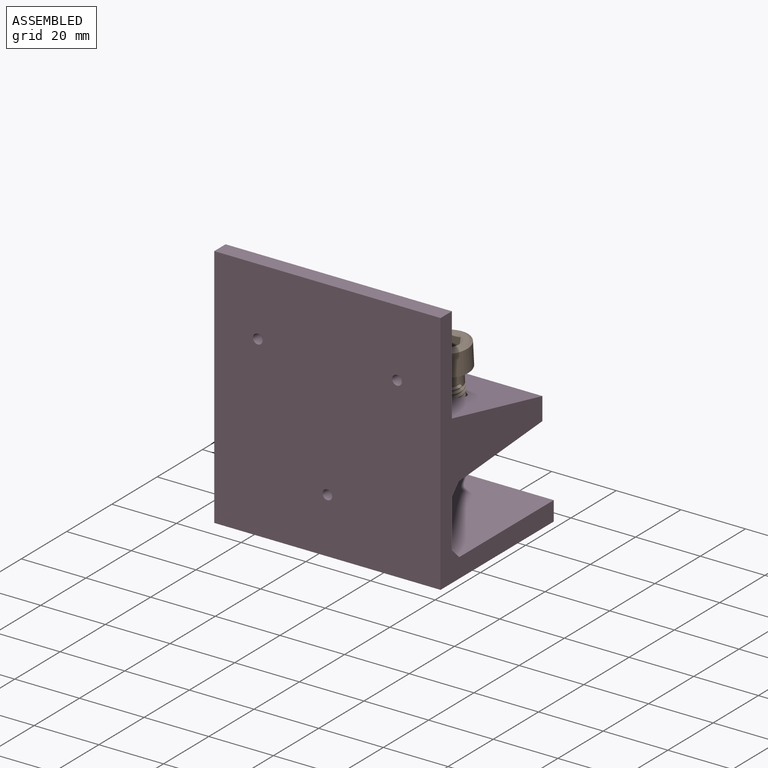
[diagram: assembled view]
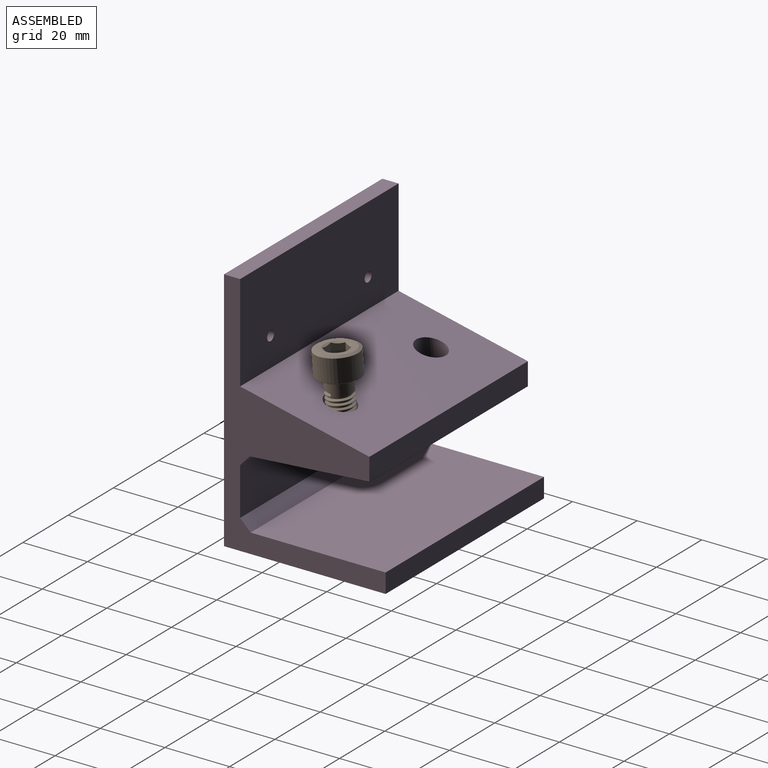
[diagram: assembled view, second angle]
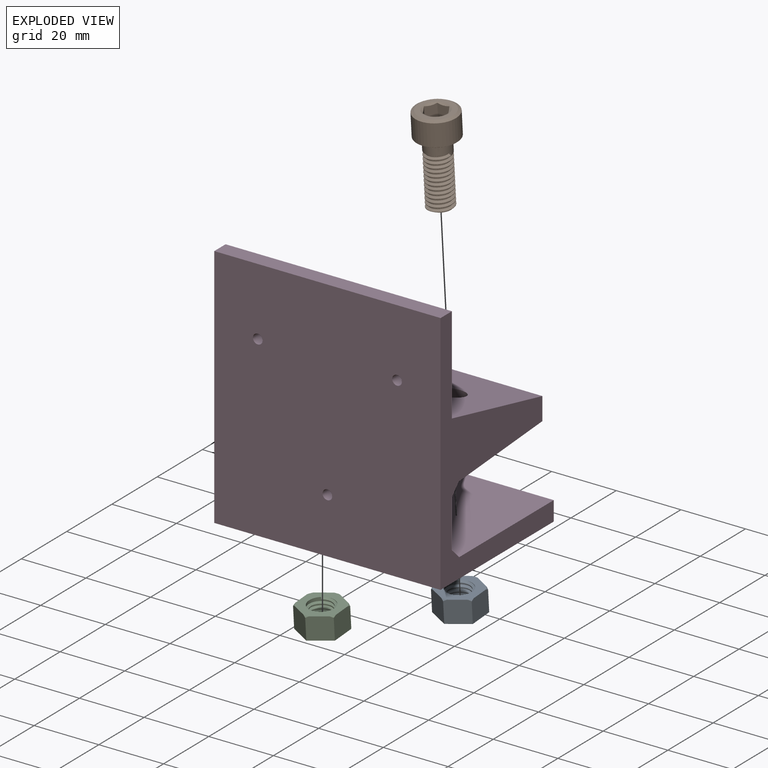
[diagram: exploded view]
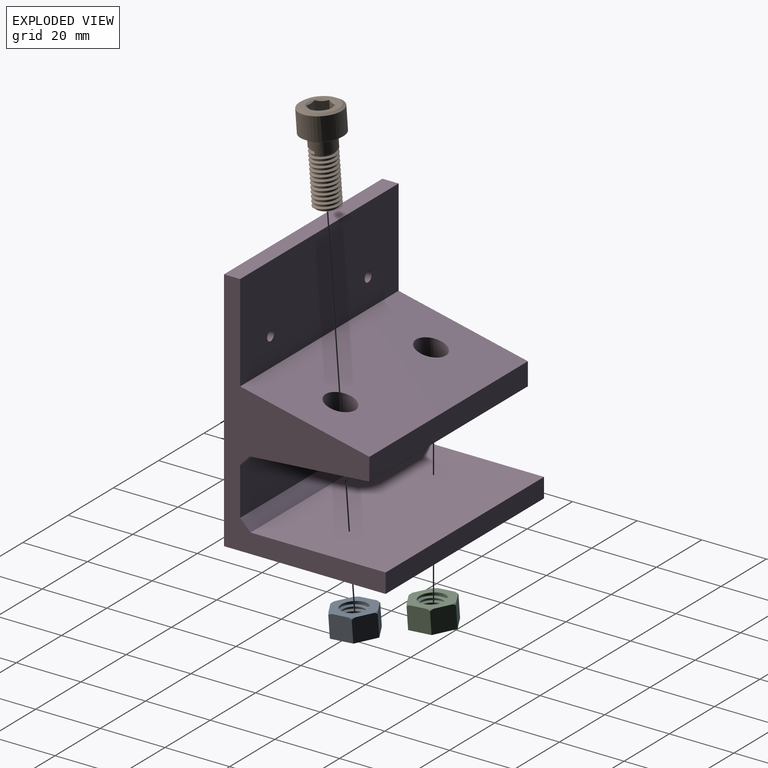
[diagram: exploded view, second angle]
ASSEMBLY  parts=4 mates=3
PART A: 21 faces, bbox 14.9x8x13.8 mm
  f0: cylinder r=4mm len=8mm, axis (0,1,0), area 34.8mm2, adj f7,f8,f10,f16,f19,f20
  f1: plane 7.05x6.35mm, normal (-0.87,0,-0.5), area 50.5mm2, adj f2,f6,f11,f16,f17,f20
  f2: plane 7.32x7.05mm, normal (0,0,-1), area 50.5mm2, adj f1,f3,f15,f16,f17,f20
  f3: plane 7.05x6.35mm, normal (0.87,0,-0.5), area 50.5mm2, adj f2,f4,f14,f15,f16,f20
  f4: plane 7.05x6.35mm, normal (0.87,0,0.5), area 50.5mm2, adj f3,f5,f13,f14,f16,f20
  f5: plane 7.32x7.05mm, normal (0,0,1), area 50.5mm2, adj f4,f6,f12,f13,f16,f20
  f6: plane 7.05x6.35mm, normal (-0.87,0,0.5), area 50.5mm2, adj f1,f5,f11,f12,f16,f20
  f7: plane 0.16x0.09mm, normal (0,0,-1), area 0mm2, adj f0,f10,f20
  f8: bspline ~8.01x8.01mm, area 89.3mm2, adj f0,f9,f19,f20
  f9: cylinder r=3.32mm len=6.7mm, axis (0,-1,0), area 43.5mm2, adj f8,f10,f19,f20
  f10: bspline ~7.99x7.98mm, area 99mm2, adj f0,f7,f9,f18,f19,f20
  f11: cone r=6.83mm half-angle=45deg, axis (0,1,0), area 0.5mm2, adj f1,f6,f16
  f12: cone r=6.83mm half-angle=45deg, axis (0,1,0), area 0.5mm2, adj f5,f6,f16
  f13: cone r=6.83mm half-angle=45deg, axis (0,1,0), area 0.5mm2, adj f4,f5,f16
  f14: cone r=6.83mm half-angle=45deg, axis (0,1,0), area 0.5mm2, adj f3,f4,f16
  f15: cone r=6.83mm half-angle=45deg, axis (0,1,0), area 0.5mm2, adj f2,f3,f16
  f16: plane 13.67x12.6mm, normal (0,-1,0), area 85mm2, adj f0,f1,f2,f3,f4,f5,f6,f11
  f17: cone r=6.83mm half-angle=45deg, axis (0,1,0), area 0.5mm2, adj f1,f2,f16
  f18: cylinder r=4mm len=1.71mm, axis (0,-1,0), area 0.1mm2, adj f10,f16,f19
  f19: plane 1.09x0.55mm, normal (0.59,0,-0.81), area 0.5mm2, adj f0,f8,f9,f10,f18
  f20: plane 14.9x12.95mm, normal (0,1,0), area 96mm2, adj f0,f1,f2,f3,f4,f5,f6,f7
PART B: 38 faces, bbox 13.3x28.9x13.3 mm
  f0: cylinder r=4mm len=8mm, axis (0,-1,0), area 93.8mm2, adj f13,f16,f21,f36
  f1: cylinder r=4mm len=8mm, axis (0,-1,0), area 2.3mm2, adj f2,f14,f16,f37
  f2: cylinder r=4mm len=8mm, axis (0,-1,0), area 3.9mm2, adj f1,f3,f14,f16
  f3: cylinder r=4mm len=8mm, axis (0,-1,0), area 3.9mm2, adj f2,f4,f14,f16
  f4: cylinder r=4mm len=8mm, axis (0,-1,0), area 3.9mm2, adj f3,f5,f14,f16
  f5: cylinder r=4mm len=8mm, axis (0,-1,0), area 3.9mm2, adj f4,f6,f14,f16
  f6: cylinder r=4mm len=8mm, axis (0,-1,0), area 3.9mm2, adj f5,f7,f14,f16
  f7: cylinder r=4mm len=8mm, axis (0,-1,0), area 3.9mm2, adj f6,f8,f14,f16
  f8: cylinder r=4mm len=8mm, axis (0,-1,0), area 3.9mm2, adj f7,f9,f14,f16
  f9: cylinder r=4mm len=8mm, axis (0,-1,0), area 3.9mm2, adj f8,f10,f14,f16
  f10: cylinder r=4mm len=8mm, axis (0,-1,0), area 3.9mm2, adj f9,f11,f14,f16
  f11: cylinder r=4mm len=8mm, axis (0,-1,0), area 3.9mm2, adj f10,f12,f14,f16
  f12: cylinder r=4mm len=8mm, axis (0,-1,0), area 3.9mm2, adj f11,f13,f14,f16
  f13: cylinder r=4mm len=8mm, axis (0,-1,0), area 3.9mm2, adj f0,f12,f14,f16
  f14: bspline ~16.64x8mm, area 230.1mm2, adj f1,f2,f3,f4,f5,f6,f7,f8
  f15: cylinder r=3.32mm len=16.5mm, axis (0,-1,0), area 76.6mm2, adj f14,f16,f36,f37
  f16: bspline ~17.42x8mm, area 240.9mm2, adj f0,f1,f2,f3,f4,f5,f6,f7
  f17: plane 11.16x11.16mm, normal (0,-1,0), area 47.6mm2, adj f18,f22
  f18: cone r=6.5mm half-angle=60deg, axis (0,1,0), area 40.2mm2, adj f17,f19
  f19: cylinder r=6.5mm len=13mm, axis (0,-1,0), area 283.4mm2, adj f18,f20
  f20: cone r=5.58mm half-angle=60deg, axis (0,-1,0), area 40.2mm2, adj f19,f21
  f21: plane 11.16x11.16mm, normal (0,1,0), area 47.6mm2, adj f0,f20
  f22: cone r=0mm half-angle=60deg, axis (0,-1,0), area 15.4mm2, adj f17,f23,f24,f25,f26,f27,f28
  f23: plane 6.17x4.06mm, normal (0,0,1), area 21.3mm2, adj f22,f24,f28,f29,f34
  f24: plane 5.86x3.25mm, normal (-0.87,0,0.5), area 21.3mm2, adj f22,f23,f25,f33,f34
  f25: plane 5.86x3.25mm, normal (-0.87,0,-0.5), area 21.3mm2, adj f22,f24,f26,f32,f33
  f26: plane 5.86x3.76mm, normal (0,0,-1), area 21.3mm2, adj f22,f25,f27,f31,f32
  f27: plane 5.86x3.25mm, normal (0.87,0,-0.5), area 21.3mm2, adj f22,f26,f28,f30,f31
  f28: plane 5.86x3.25mm, normal (0.87,0,0.5), area 21.3mm2, adj f22,f23,f27,f29,f30
  f29: plane 2.81x1.63mm, normal (0,-1,0), area 0.6mm2, adj f23,f28,f35
  f30: plane 3.25x0.94mm, normal (0,-1,0), area 0.6mm2, adj f27,f28,f35
  f31: plane 2.81x1.63mm, normal (0,-1,0), area 0.6mm2, adj f26,f27,f35
  f32: plane 2.81x1.63mm, normal (0,-1,0), area 0.6mm2, adj f25,f26,f35
  f33: plane 3.25x0.94mm, normal (0,-1,0), area 0.6mm2, adj f24,f25,f35
  f34: plane 2.81x1.63mm, normal (0,-1,0), area 0.6mm2, adj f23,f24,f35
  f35: cone r=0mm half-angle=60deg, axis (0,-1,0), area 38.3mm2, adj f29,f30,f31,f32,f33,f34
  f36: plane 1.09x0.68mm, normal (0,0,-1), area 0.5mm2, adj f0,f14,f15,f16
  f37: plane 7.64x7.56mm, normal (0,1,0), area 41.4mm2, adj f1,f14,f15,f16
PART C: same geometry as A
PART D: 33 faces, bbox 70x50x76 mm
  f0: plane 76x70mm, normal (0,-1,0), area 5298.8mm2, adj f1,f9,f10,f11,f28,f29,f30
  f1: plane 70x50mm, normal (0,0,-1), area 3500mm2, adj f0,f2,f10,f11
  f2: plane 70x6mm, normal (0,1,0), area 420mm2, adj f1,f3,f10,f11
  f3: plane 70x41.77mm, normal (0,0,1), area 2923.7mm2, adj f2,f10,f11,f12
  f4: plane 70x14.77mm, normal (0,1,0), area 1026.6mm2, adj f10,f11,f12,f13,f30
  f5: plane 70x37.01mm, normal (0,0.07,-1), area 2277.5mm2, adj f6,f10,f11,f13,f14,f15,f16,f17
  f6: plane 70x7mm, normal (0,1,0), area 490mm2, adj f5,f7,f10,f11
  f7: plane 70x40mm, normal (0,0.22,0.98), area 2737mm2, adj f6,f8,f10,f11,f31,f32
  f8: plane 70x30mm, normal (0,1,0), area 2085.9mm2, adj f7,f9,f10,f11,f28,f29
  f9: plane 70x5mm, normal (0,0,1), area 350mm2, adj f0,f8,f10,f11
  f10: plane 76x50mm, normal (1,0,0), area 1179.7mm2, adj f0,f1,f2,f3,f4,f5,f6,f7
  f11: plane 76x50mm, normal (-1,0,0), area 1179.7mm2, adj f0,f1,f2,f3,f4,f5,f6,f7
  f12: plane 70x3.23mm, normal (0,0.71,0.71), area 320.1mm2, adj f3,f4,f10,f11
  f13: plane 70x3.22mm, normal (0,0.73,-0.68), area 307.9mm2, adj f4,f5,f10,f11
  f14: plane 8.35x7.57mm, normal (-1,0,0), area 55mm2, adj f5,f15,f19,f20
  f15: plane 7.27x6.8mm, normal (-0.5,0.86,0.06), area 55mm2, adj f5,f14,f16,f20
  f16: plane 7.27x6.8mm, normal (0.5,0.86,0.06), area 55mm2, adj f5,f15,f17,f20
  f17: plane 8.35x7.57mm, normal (1,0,0), area 55mm2, adj f5,f16,f18,f20
  f18: plane 7.27x6.8mm, normal (0.5,-0.86,-0.06), area 55mm2, adj f5,f17,f19,f20
  f19: plane 7.27x6.8mm, normal (-0.5,-0.86,-0.06), area 55mm2, adj f5,f14,f18,f20
  f20: plane 15.66x13.6mm, normal (0,0.07,-1), area 96.6mm2, adj f14,f15,f16,f17,f18,f19,f32
  f21: plane 7.27x6.8mm, normal (-0.5,-0.86,-0.06), area 55mm2, adj f5,f22,f26,f27
  f22: plane 8.35x7.57mm, normal (-1,0,0), area 55mm2, adj f5,f21,f23,f27
  f23: plane 7.27x6.8mm, normal (-0.5,0.86,0.06), area 55mm2, adj f5,f22,f24,f27
  f24: plane 7.27x6.8mm, normal (0.5,0.86,0.06), area 55mm2, adj f5,f23,f25,f27
  f25: plane 8.35x7.57mm, normal (1,0,0), area 55mm2, adj f5,f24,f26,f27
  f26: plane 7.27x6.8mm, normal (0.5,-0.86,-0.06), area 55mm2, adj f5,f21,f25,f27
  f27: plane 15.66x13.6mm, normal (0,0.07,-1), area 96.6mm2, adj f21,f22,f23,f24,f25,f26,f31
  f28: cylinder r=1.5mm len=5mm, axis (0,-1,0), area 47.1mm2, adj f0,f8
  f29: cylinder r=1.5mm len=5mm, axis (0,-1,0), area 47.1mm2, adj f0,f8
  f30: cylinder r=1.5mm len=5mm, axis (0,-1,0), area 47.1mm2, adj f0,f4
  f31: cylinder r=4.5mm len=9.51mm, axis (0,0.07,-1), area 164.1mm2, adj f7,f27
  f32: cylinder r=4.5mm len=9.51mm, axis (0,0.07,-1), area 164.1mm2, adj f7,f20
PLACE A rot(axis=(-0.56,0.61,-0.56),117.6deg) t=(101.46,28.05,34)mm
PLACE B rot(axis=(-1,0,0),85.7deg) t=(101.46,26.18,58.93)mm
PLACE C rot(axis=(-0.56,0.61,-0.56),117.6deg) t=(61.46,28.05,34)mm
PLACE D t=(46.46,1.77,2.4)mm fixed
MATE fastened C.f0 <-> D.f31  axis (0,-0.07,1) through (61.46,27.75,37.99)mm
MATE fastened D.f32 <-> B.f15  axis (0,0.07,-1) through (101.46,28.27,31.01)mm
MATE fastened A.f0 <-> D.f32  axis (0,-0.07,1) through (101.46,27.75,37.99)mm
